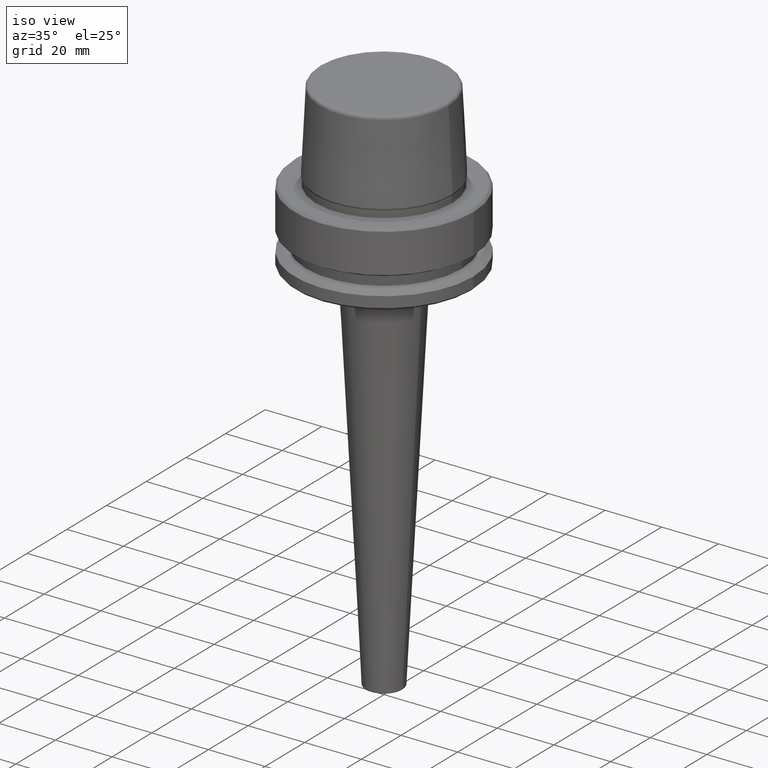
[diagram: clean part render]
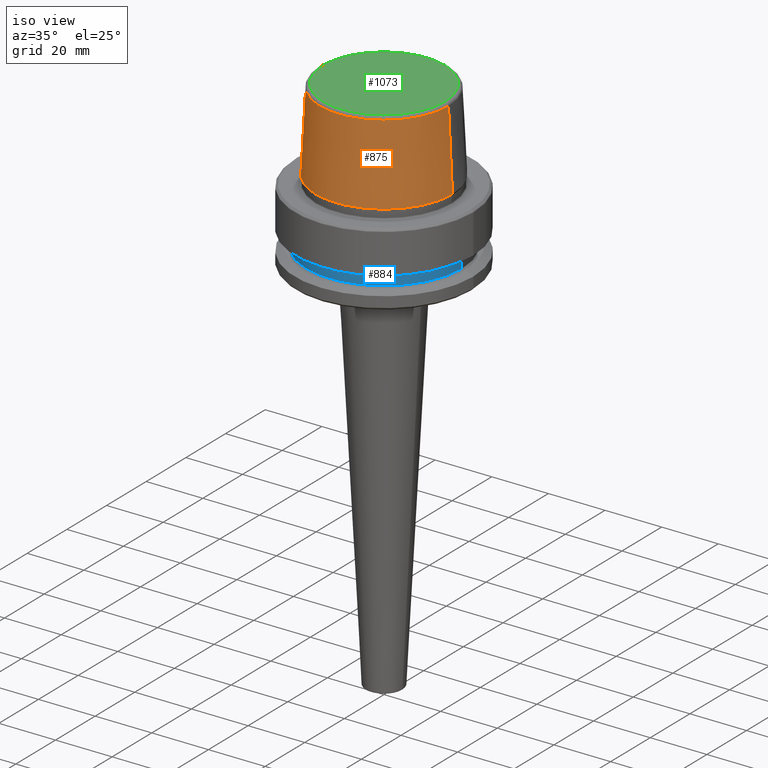
[diagram: same view with three faces highlighted in distinct colors, each labeled with its STEP entity id]
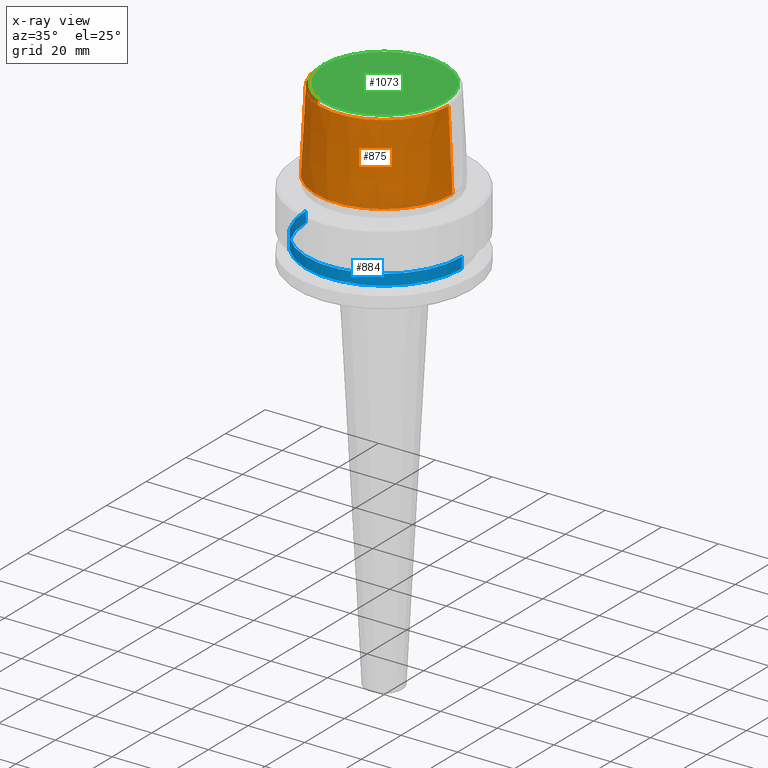
[diagram: x-ray of the same camera — body ghosted, the three highlighted faces saturated]
A machine part, iso view with three faces highlighted in distinct colors.
The next image is the same camera in x-ray (body ghosted, the three faces saturated) — at least one of them is partly hidden behind the body in this view.
Their STEP definitions:

[orange] entity #875 — the highlighted conical surface has half-angle 2.868 deg.
#32 = EDGE_CURVE ( 'NONE', #1119, #436, #411, .T. ) ;
#50 = DIRECTION ( 'NONE',  ( 0.0000000000000000000, 0.0000000000000000000, -1.000000000000000000 ) ) ;
#69 = LINE ( 'NONE', #1044, #646 ) ;
#92 = VERTEX_POINT ( 'NONE', #817 ) ;
#142 = VECTOR ( 'NONE', #648, 1000.000000000000200 ) ;
#230 = CARTESIAN_POINT ( 'NONE',  ( 0.0000000000000000000, 0.0000000000000000000, 3.000000000000002700 ) ) ;
#241 = DIRECTION ( 'NONE',  ( -0.0000000000000000000, -0.0000000000000000000, 1.000000000000000000 ) ) ;
#312 = AXIS2_PLACEMENT_3D ( 'NONE', #528, #926, #1078 ) ;
#345 = ORIENTED_EDGE ( 'NONE', *, *, #694, .F. ) ;
#361 = DIRECTION ( 'NONE',  ( 0.05003611051310812000, 6.127656258166108900E-018, -0.9987474093306675200 ) ) ;
#394 = AXIS2_PLACEMENT_3D ( 'NONE', #1000, #241, #657 ) ;
#411 = CIRCLE ( 'NONE', #394, 22.77957961851797100 ) ;
#426 = CONICAL_SURFACE ( 'NONE', #562, 24.17032625081241900, 0.05005701257456005000 ) ;
#436 = VERTEX_POINT ( 'NONE', #455 ) ;
#455 = CARTESIAN_POINT ( 'NONE',  ( 22.77957961851797100, 2.874852597157249900E-015, 30.76004333261571900 ) ) ;
#513 = ORIENTED_EDGE ( 'NONE', *, *, #1108, .T. ) ;
#528 = CARTESIAN_POINT ( 'NONE',  ( 0.0000000000000000000, 0.0000000000000000000, 3.000000000000002700 ) ) ;
#562 = AXIS2_PLACEMENT_3D ( 'NONE', #230, #50, #727 ) ;
#572 = LINE ( 'NONE', #781, #142 ) ;
#577 = ORIENTED_EDGE ( 'NONE', *, *, #1223, .T. ) ;
#646 = VECTOR ( 'NONE', #361, 1000.000000000000200 ) ;
#648 = DIRECTION ( 'NONE',  ( -0.05003611051310812000, 0.0000000000000000000, -0.9987474093306675200 ) ) ;
#657 = DIRECTION ( 'NONE',  ( 1.000000000000000000, 0.0000000000000000000, 0.0000000000000000000 ) ) ;
#676 = CIRCLE ( 'NONE', #312, 24.17032625081241900 ) ;
#694 = EDGE_CURVE ( 'NONE', #436, #92, #69, .T. ) ;
#718 = EDGE_LOOP ( 'NONE', ( #345, #855, #513, #577 ) ) ;
#727 = DIRECTION ( 'NONE',  ( -1.000000000000000000, 0.0000000000000000000, 0.0000000000000000000 ) ) ;
#781 = CARTESIAN_POINT ( 'NONE',  ( -24.17032625081241900, 0.0000000000000000000, 3.000000000000002700 ) ) ;
#816 = CARTESIAN_POINT ( 'NONE',  ( -24.17032625081241900, 2.960011267740467600E-015, 3.000000000000002700 ) ) ;
#817 = CARTESIAN_POINT ( 'NONE',  ( 24.17032625081241900, 0.0000000000000000000, 3.000000000000002700 ) ) ;
#855 = ORIENTED_EDGE ( 'NONE', *, *, #32, .F. ) ;
#861 = CARTESIAN_POINT ( 'NONE',  ( -22.77957961851797100, 0.0000000000000000000, 30.76004333261571900 ) ) ;
#875 = ADVANCED_FACE ( 'NONE', ( #1097 ), #426, .T. ) ;
#926 = DIRECTION ( 'NONE',  ( -0.0000000000000000000, -0.0000000000000000000, 1.000000000000000000 ) ) ;
#1000 = CARTESIAN_POINT ( 'NONE',  ( 0.0000000000000000000, 0.0000000000000000000, 30.76004333261571900 ) ) ;
#1044 = CARTESIAN_POINT ( 'NONE',  ( 24.17032625081241900, 2.960011267740467600E-015, 3.000000000000002700 ) ) ;
#1048 = VERTEX_POINT ( 'NONE', #816 ) ;
#1078 = DIRECTION ( 'NONE',  ( 1.000000000000000000, 0.0000000000000000000, 0.0000000000000000000 ) ) ;
#1097 = FACE_OUTER_BOUND ( 'NONE', #718, .T. ) ;
#1108 = EDGE_CURVE ( 'NONE', #1119, #1048, #572, .T. ) ;
#1119 = VERTEX_POINT ( 'NONE', #861 ) ;
#1223 = EDGE_CURVE ( 'NONE', #1048, #92, #676, .T. ) ;

[blue] entity #884 — the highlighted cylindrical surface (partial cylindrical patch) has radius 27.5 mm, axis along (-0, -0, 1).
#17 = CYLINDRICAL_SURFACE ( 'NONE', #1259, 27.49999999999999600 ) ;
#93 = AXIS2_PLACEMENT_3D ( 'NONE', #614, #1131, #874 ) ;
#304 = CARTESIAN_POINT ( 'NONE',  ( -27.49999999999999600, 3.367778697655220900E-015, 78.96908074195309300 ) ) ;
#329 = ORIENTED_EDGE ( 'NONE', *, *, #536, .T. ) ;
#365 = CARTESIAN_POINT ( 'NONE',  ( 0.0000000000000000000, 0.0000000000000000000, -16.10000000000001600 ) ) ;
#370 = VECTOR ( 'NONE', #908, 1000.000000000000000 ) ;
#406 = EDGE_LOOP ( 'NONE', ( #475, #1089, #329, #864 ) ) ;
#414 = EDGE_CURVE ( 'NONE', #637, #673, #1219, .T. ) ;
#467 = LINE ( 'NONE', #1083, #370 ) ;
#475 = ORIENTED_EDGE ( 'NONE', *, *, #488, .F. ) ;
#488 = EDGE_CURVE ( 'NONE', #1126, #637, #1102, .T. ) ;
#536 = EDGE_CURVE ( 'NONE', #1016, #673, #467, .T. ) ;
#583 = FACE_OUTER_BOUND ( 'NONE', #406, .T. ) ;
#614 = CARTESIAN_POINT ( 'NONE',  ( 0.0000000000000000000, 0.0000000000000000000, -19.90000000000001600 ) ) ;
#637 = VERTEX_POINT ( 'NONE', #1075 ) ;
#673 = VERTEX_POINT ( 'NONE', #903 ) ;
#757 = DIRECTION ( 'NONE',  ( -0.0000000000000000000, -0.0000000000000000000, 1.000000000000000000 ) ) ;
#799 = AXIS2_PLACEMENT_3D ( 'NONE', #365, #757, #1107 ) ;
#864 = ORIENTED_EDGE ( 'NONE', *, *, #414, .F. ) ;
#874 = DIRECTION ( 'NONE',  ( 1.000000000000000000, 0.0000000000000000000, 0.0000000000000000000 ) ) ;
#881 = CARTESIAN_POINT ( 'NONE',  ( -27.49999999999999600, 3.367778697655220900E-015, -19.90000000000001600 ) ) ;
#884 = ADVANCED_FACE ( 'NONE', ( #583 ), #17, .T. ) ;
#903 = CARTESIAN_POINT ( 'NONE',  ( 27.49999999999999600, 0.0000000000000000000, -16.10000000000001600 ) ) ;
#908 = DIRECTION ( 'NONE',  ( -0.0000000000000000000, -0.0000000000000000000, 1.000000000000000000 ) ) ;
#913 = VECTOR ( 'NONE', #1085, 1000.000000000000000 ) ;
#918 = DIRECTION ( 'NONE',  ( -0.0000000000000000000, -0.0000000000000000000, 1.000000000000000000 ) ) ;
#1016 = VERTEX_POINT ( 'NONE', #1246 ) ;
#1032 = DIRECTION ( 'NONE',  ( 1.000000000000000000, 0.0000000000000000000, 0.0000000000000000000 ) ) ;
#1041 = CIRCLE ( 'NONE', #93, 27.49999999999999600 ) ;
#1075 = CARTESIAN_POINT ( 'NONE',  ( -27.49999999999999600, 3.367778697655220900E-015, -16.10000000000001600 ) ) ;
#1083 = CARTESIAN_POINT ( 'NONE',  ( 27.49999999999999600, 0.0000000000000000000, 78.96908074195309300 ) ) ;
#1085 = DIRECTION ( 'NONE',  ( -0.0000000000000000000, -0.0000000000000000000, 1.000000000000000000 ) ) ;
#1089 = ORIENTED_EDGE ( 'NONE', *, *, #1118, .T. ) ;
#1102 = LINE ( 'NONE', #304, #913 ) ;
#1107 = DIRECTION ( 'NONE',  ( 1.000000000000000000, 0.0000000000000000000, 0.0000000000000000000 ) ) ;
#1118 = EDGE_CURVE ( 'NONE', #1126, #1016, #1041, .T. ) ;
#1126 = VERTEX_POINT ( 'NONE', #881 ) ;
#1131 = DIRECTION ( 'NONE',  ( -0.0000000000000000000, -0.0000000000000000000, 1.000000000000000000 ) ) ;
#1169 = CARTESIAN_POINT ( 'NONE',  ( 0.0000000000000000000, 0.0000000000000000000, 78.96908074195309300 ) ) ;
#1219 = CIRCLE ( 'NONE', #799, 27.49999999999999600 ) ;
#1246 = CARTESIAN_POINT ( 'NONE',  ( 27.49999999999999600, 0.0000000000000000000, -19.90000000000001600 ) ) ;
#1259 = AXIS2_PLACEMENT_3D ( 'NONE', #1169, #918, #1032 ) ;

[green] entity #1073 — the highlighted planar face has unit normal (0, 0, -1).
#45 = CARTESIAN_POINT ( 'NONE',  ( 0.0000000000000000000, 0.0000000000000000000, 31.89999999999999900 ) ) ;
#147 = DIRECTION ( 'NONE',  ( 0.0000000000000000000, 0.0000000000000000000, -1.000000000000000000 ) ) ;
#148 = VERTEX_POINT ( 'NONE', #607 ) ;
#176 = AXIS2_PLACEMENT_3D ( 'NONE', #45, #147, #215 ) ;
#214 = DIRECTION ( 'NONE',  ( 1.000000000000000000, 0.0000000000000000000, 0.0000000000000000000 ) ) ;
#215 = DIRECTION ( 'NONE',  ( -1.000000000000000000, 0.0000000000000000000, -0.0000000000000000000 ) ) ;
#306 = FACE_OUTER_BOUND ( 'NONE', #457, .T. ) ;
#318 = CIRCLE ( 'NONE', #608, 21.58108272732117100 ) ;
#357 = EDGE_CURVE ( 'NONE', #148, #491, #318, .T. ) ;
#388 = EDGE_CURVE ( 'NONE', #491, #148, #751, .T. ) ;
#392 = DIRECTION ( 'NONE',  ( -0.0000000000000000000, -0.0000000000000000000, 1.000000000000000000 ) ) ;
#424 = PLANE ( 'NONE',  #176 ) ;
#457 = EDGE_LOOP ( 'NONE', ( #876, #553 ) ) ;
#491 = VERTEX_POINT ( 'NONE', #1152 ) ;
#553 = ORIENTED_EDGE ( 'NONE', *, *, #357, .T. ) ;
#607 = CARTESIAN_POINT ( 'NONE',  ( -21.58108272732117100, 2.716307157494421400E-015, 31.89999999999999900 ) ) ;
#608 = AXIS2_PLACEMENT_3D ( 'NONE', #1220, #858, #214 ) ;
#751 = CIRCLE ( 'NONE', #923, 21.58108272732117100 ) ;
#858 = DIRECTION ( 'NONE',  ( -0.0000000000000000000, -0.0000000000000000000, 1.000000000000000000 ) ) ;
#876 = ORIENTED_EDGE ( 'NONE', *, *, #388, .T. ) ;
#923 = AXIS2_PLACEMENT_3D ( 'NONE', #982, #392, #1177 ) ;
#982 = CARTESIAN_POINT ( 'NONE',  ( 0.0000000000000000000, 0.0000000000000000000, 31.89999999999999900 ) ) ;
#1073 = ADVANCED_FACE ( 'NONE', ( #306 ), #424, .F. ) ;
#1152 = CARTESIAN_POINT ( 'NONE',  ( 21.58108272732117100, 0.0000000000000000000, 31.89999999999999900 ) ) ;
#1177 = DIRECTION ( 'NONE',  ( 1.000000000000000000, 0.0000000000000000000, 0.0000000000000000000 ) ) ;
#1220 = CARTESIAN_POINT ( 'NONE',  ( 0.0000000000000000000, 0.0000000000000000000, 31.89999999999999900 ) ) ;